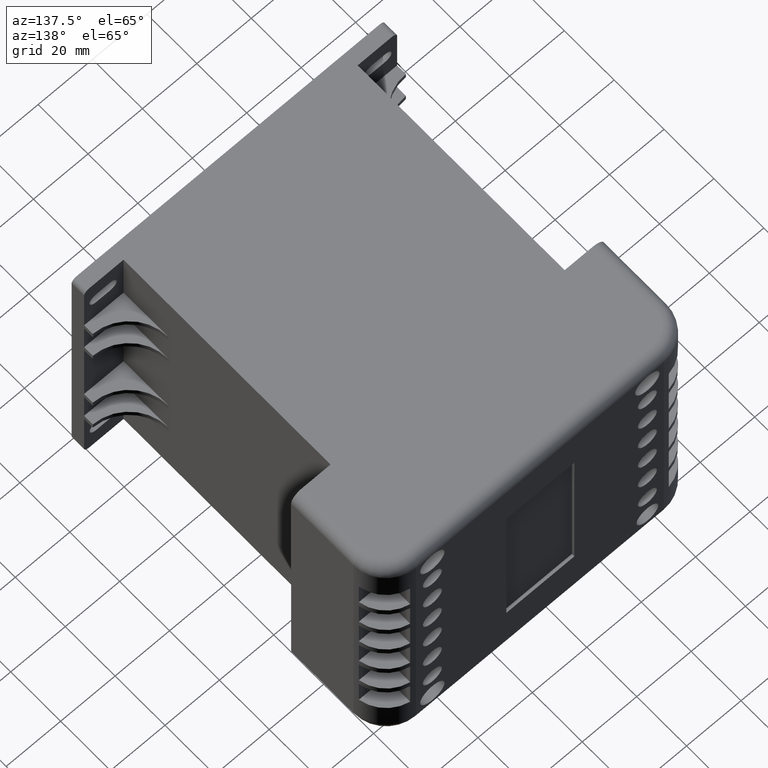
[diagram: clean part render]
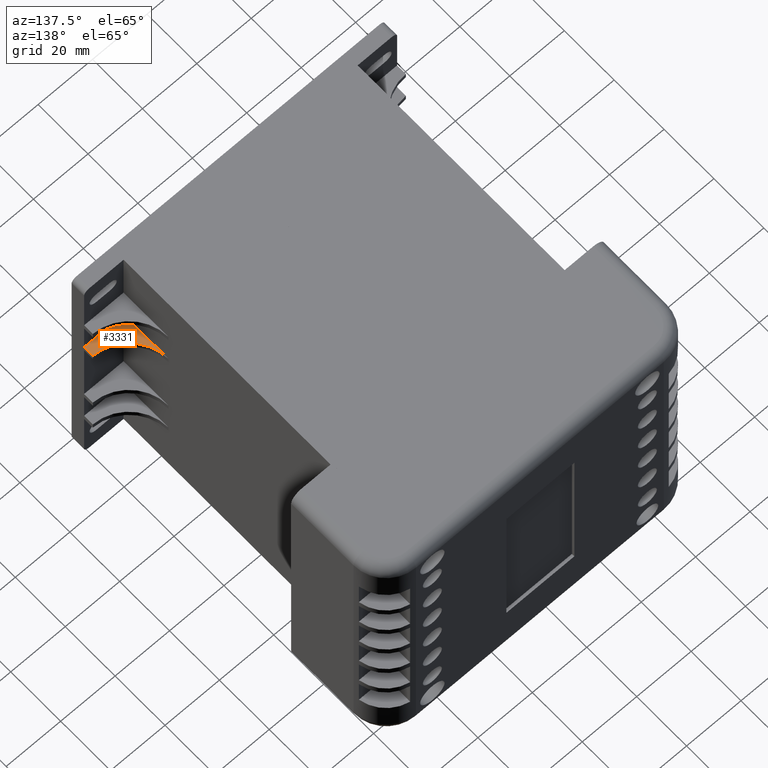
[diagram: same view with one face highlighted and labeled with its STEP entity id]
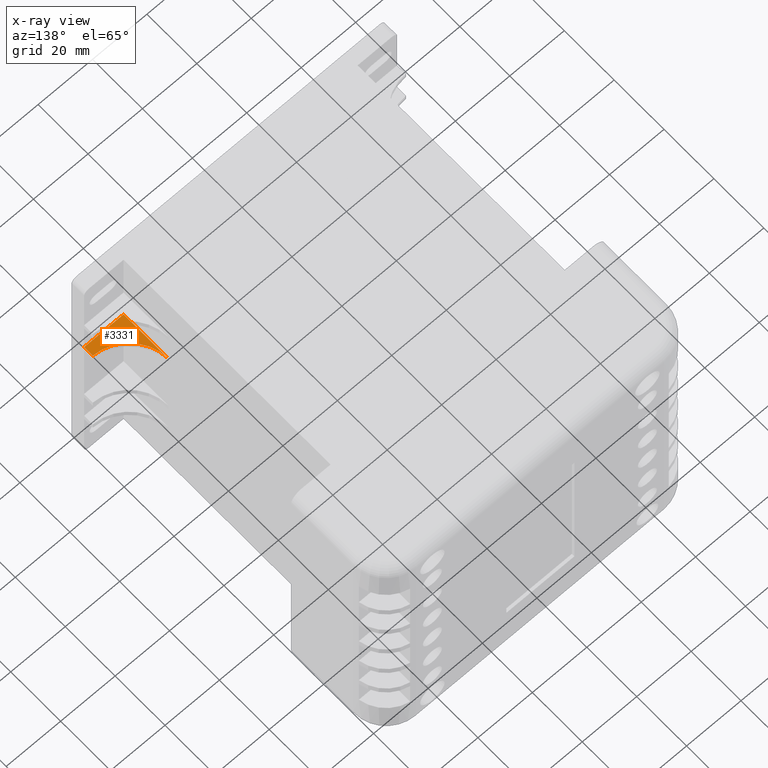
[diagram: x-ray of the same camera — body ghosted, the highlighted face saturated]
A machine part, auxiliary view. The second image highlights one B-rep face of the part: STEP entity #3331.
The next image is the same camera in x-ray: the body ghosted, the highlighted face saturated — about 0% of this face is hidden behind the body in this view.
In plain terms, the highlighted planar face has unit normal (0, 0, 1).
Its self-contained STEP definition (entity closure, byte-faithful):
#116=CIRCLE('',#3660,14.5);
#292=FACE_OUTER_BOUND('',#501,.T.);
#501=EDGE_LOOP('',(#2292,#2293,#2294,#2295));
#778=LINE('',#5131,#1098);
#779=LINE('',#5133,#1099);
#780=LINE('',#5134,#1100);
#1098=VECTOR('',#4161,10.);
#1099=VECTOR('',#4162,10.);
#1100=VECTOR('',#4163,10.);
#1404=VERTEX_POINT('',#5121);
#1405=VERTEX_POINT('',#5122);
#1408=VERTEX_POINT('',#5130);
#1409=VERTEX_POINT('',#5132);
#1732=EDGE_CURVE('',#1404,#1405,#116,.T.);
#1736=EDGE_CURVE('',#1404,#1408,#778,.T.);
#1737=EDGE_CURVE('',#1408,#1409,#779,.T.);
#1738=EDGE_CURVE('',#1405,#1409,#780,.T.);
#2292=ORIENTED_EDGE('',*,*,#1732,.F.);
#2293=ORIENTED_EDGE('',*,*,#1736,.T.);
#2294=ORIENTED_EDGE('',*,*,#1737,.T.);
#2295=ORIENTED_EDGE('',*,*,#1738,.F.);
#2953=PLANE('',#3662);
#3331=ADVANCED_FACE('',(#292),#2953,.T.);
#3660=AXIS2_PLACEMENT_3D('',#5123,#4153,#4154);
#3662=AXIS2_PLACEMENT_3D('',#5129,#4159,#4160);
#4153=DIRECTION('center_axis',(6.125368411725E-16,0.,1.));
#4154=DIRECTION('ref_axis',(0.,-1.,0.));
#4159=DIRECTION('center_axis',(6.125368411725E-16,0.,1.));
#4160=DIRECTION('ref_axis',(0.,-1.,0.));
#4161=DIRECTION('',(0.,-1.,0.));
#4162=DIRECTION('',(1.,0.,-6.125368411725E-16));
#4163=DIRECTION('',(0.,-1.,0.));
#5121=CARTESIAN_POINT('',(-14.5,23.,67.));
#5122=CARTESIAN_POINT('',(1.77635683940025E-14,8.50000000000001,67.));
#5123=CARTESIAN_POINT('Origin',(1.87214078662281E-14,23.,67.));
#5129=CARTESIAN_POINT('Origin',(-14.5,23.,67.));
#5130=CARTESIAN_POINT('',(-14.5,5.,67.));
#5131=CARTESIAN_POINT('',(-14.5,23.,67.));
#5132=CARTESIAN_POINT('',(1.77635683940025E-14,5.,67.));
#5133=CARTESIAN_POINT('',(-14.5,5.,67.));
#5134=CARTESIAN_POINT('',(1.77635683940025E-14,23.,67.));